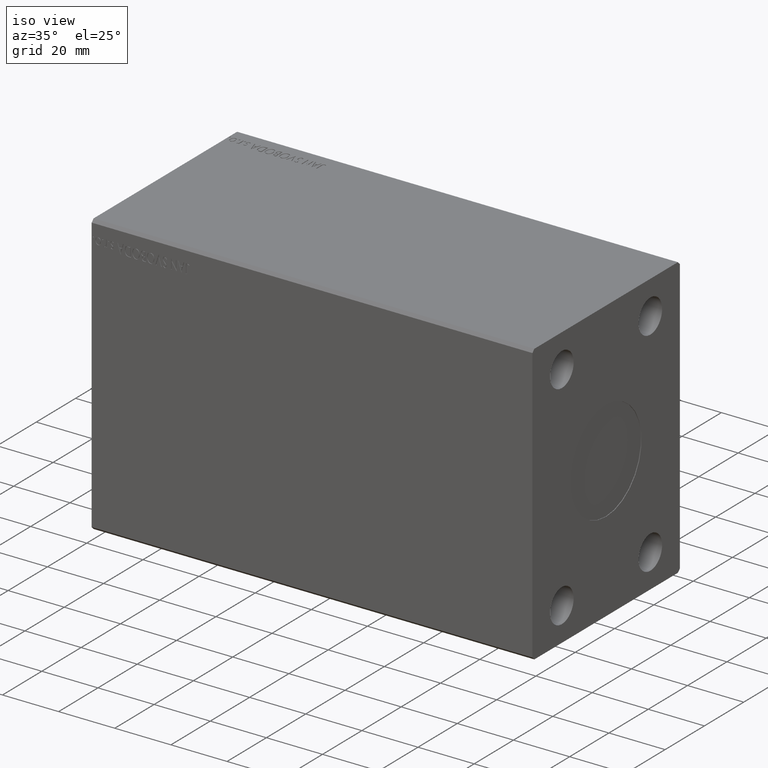
[diagram: clean part render]
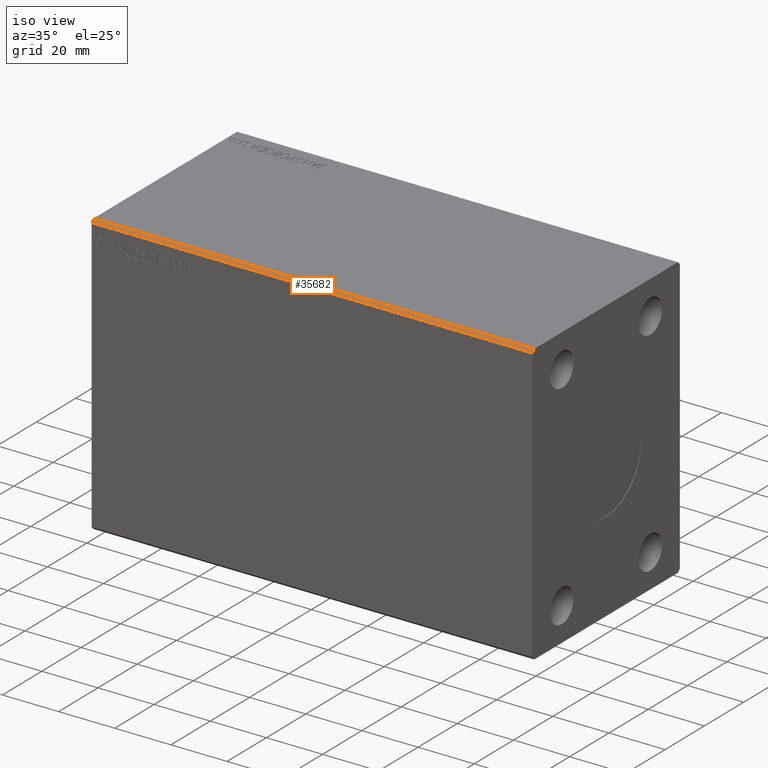
[diagram: same view with one face highlighted and labeled with its STEP entity id]
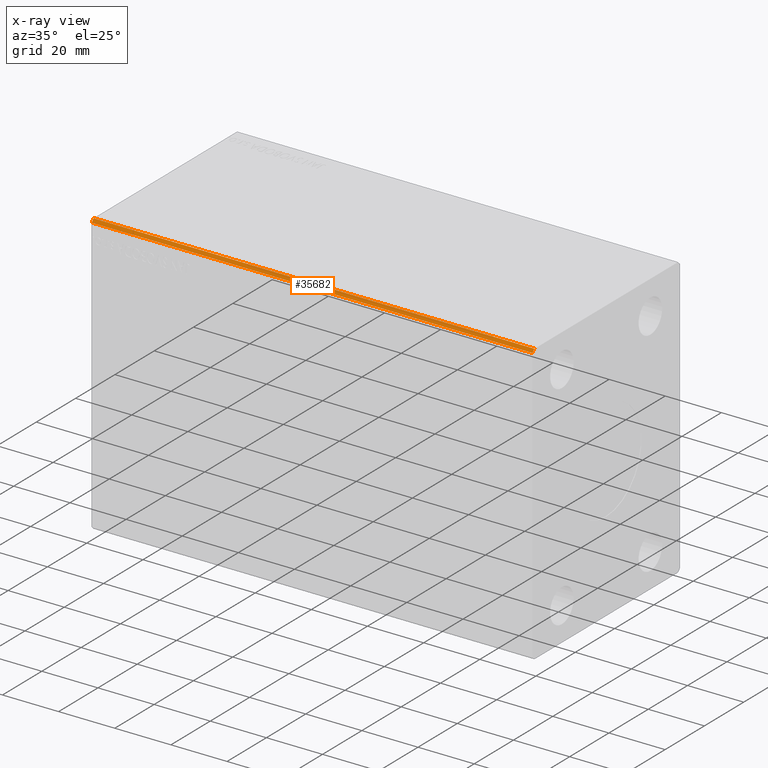
[diagram: x-ray of the same camera — body ghosted, the highlighted face saturated]
A machine part, iso view. The second image highlights one B-rep face of the part: STEP entity #35682.
The next image is the same camera in x-ray: the body ghosted, the highlighted face saturated — about 0% of this face is hidden behind the body in this view.
In plain terms, the highlighted planar face has unit normal (0, 0.7071, -0.7071).
Its self-contained STEP definition (entity closure, byte-faithful):
#1579 = LINE ( 'NONE', #22756, #36505 ) ;
#2302 = VERTEX_POINT ( 'NONE', #30054 ) ;
#3706 = ORIENTED_EDGE ( 'NONE', *, *, #40083, .T. ) ;
#5120 = DIRECTION ( 'NONE',  ( 0.000000000000000000, 0.7071067811865475727, -0.7071067811865475727 ) ) ;
#5590 = LINE ( 'NONE', #23331, #27094 ) ;
#5805 = PLANE ( 'NONE',  #34879 ) ;
#7366 = VECTOR ( 'NONE', #34636, 1000.000000000000114 ) ;
#7639 = VERTEX_POINT ( 'NONE', #27628 ) ;
#8888 = EDGE_CURVE ( 'NONE', #7639, #39931, #1579, .T. ) ;
#8988 = CARTESIAN_POINT ( 'NONE',  ( 157.0000000000000000, -36.50000000000001421, 49.99999999999998579 ) ) ;
#15205 = ORIENTED_EDGE ( 'NONE', *, *, #8888, .F. ) ;
#15373 = FACE_OUTER_BOUND ( 'NONE', #23150, .T. ) ;
#16437 = CARTESIAN_POINT ( 'NONE',  ( 0.000000000000000000, -36.50000000000001421, 49.99999999999998579 ) ) ;
#17171 = DIRECTION ( 'NONE',  ( -1.000000000000000000, -0.000000000000000000, -0.000000000000000000 ) ) ;
#17626 = CARTESIAN_POINT ( 'NONE',  ( 157.0000000000000000, -37.50000000000001421, 48.99999999999998579 ) ) ;
#19709 = DIRECTION ( 'NONE',  ( -1.000000000000000000, -0.000000000000000000, -0.000000000000000000 ) ) ;
#20312 = VECTOR ( 'NONE', #17171, 1000.000000000000000 ) ;
#20926 = EDGE_CURVE ( 'NONE', #39931, #42084, #44960, .T. ) ;
#22756 = CARTESIAN_POINT ( 'NONE',  ( 157.0000000000000000, -36.50000000000001421, 49.99999999999998579 ) ) ;
#23150 = EDGE_LOOP ( 'NONE', ( #43157, #29532, #15205, #3706 ) ) ;
#23331 = CARTESIAN_POINT ( 'NONE',  ( 157.0000000000000000, -36.50000000000001421, 49.99999999999998579 ) ) ;
#23835 = CARTESIAN_POINT ( 'NONE',  ( 157.0000000000000000, -37.50000000000001421, 48.99999999999998579 ) ) ;
#27094 = VECTOR ( 'NONE', #19709, 1000.000000000000000 ) ;
#27628 = CARTESIAN_POINT ( 'NONE',  ( 157.0000000000000000, -36.50000000000001421, 49.99999999999998579 ) ) ;
#29532 = ORIENTED_EDGE ( 'NONE', *, *, #20926, .F. ) ;
#30054 = CARTESIAN_POINT ( 'NONE',  ( 0.000000000000000000, -36.50000000000001421, 49.99999999999998579 ) ) ;
#33578 = DIRECTION ( 'NONE',  ( 0.000000000000000000, 0.7071067811865474617, 0.7071067811865474617 ) ) ;
#34636 = DIRECTION ( 'NONE',  ( 0.000000000000000000, -0.7071067811865474617, -0.7071067811865474617 ) ) ;
#34879 = AXIS2_PLACEMENT_3D ( 'NONE', #8988, #5120, #33578 ) ;
#35682 = ADVANCED_FACE ( 'NONE', ( #15373 ), #5805, .F. ) ;
#36007 = EDGE_CURVE ( 'NONE', #2302, #42084, #41018, .T. ) ;
#36505 = VECTOR ( 'NONE', #43035, 1000.000000000000114 ) ;
#37231 = CARTESIAN_POINT ( 'NONE',  ( 0.000000000000000000, -37.50000000000001421, 48.99999999999998579 ) ) ;
#39931 = VERTEX_POINT ( 'NONE', #23835 ) ;
#40083 = EDGE_CURVE ( 'NONE', #7639, #2302, #5590, .T. ) ;
#41018 = LINE ( 'NONE', #16437, #7366 ) ;
#42084 = VERTEX_POINT ( 'NONE', #37231 ) ;
#43035 = DIRECTION ( 'NONE',  ( 0.000000000000000000, -0.7071067811865474617, -0.7071067811865474617 ) ) ;
#43157 = ORIENTED_EDGE ( 'NONE', *, *, #36007, .T. ) ;
#44960 = LINE ( 'NONE', #17626, #20312 ) ;